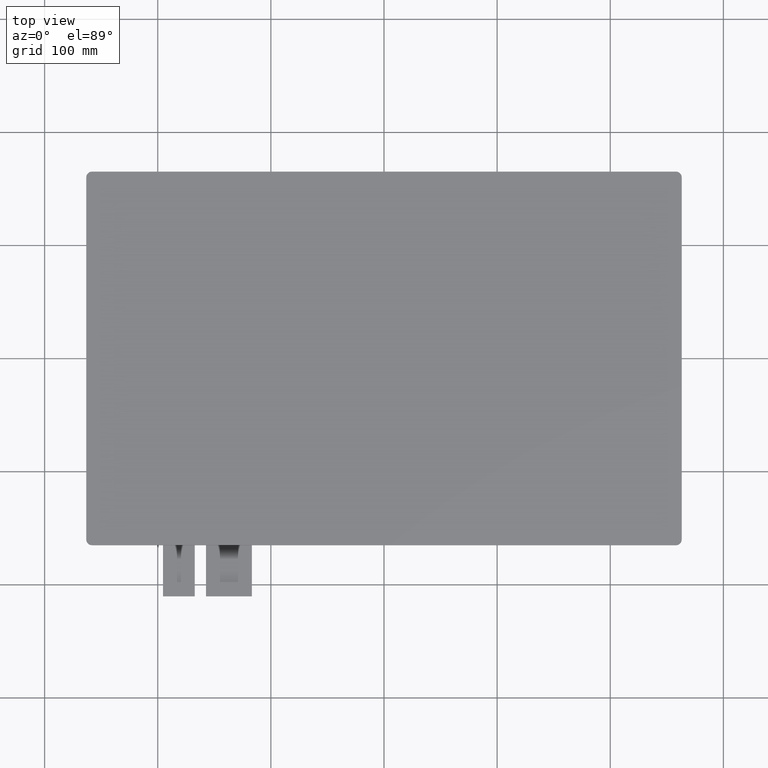
[diagram: clean part render]
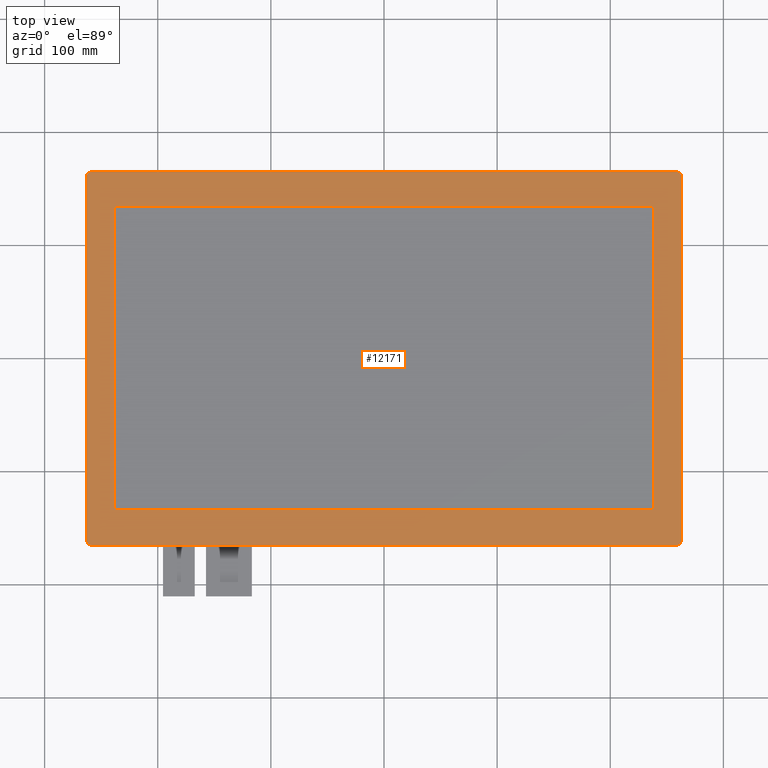
[diagram: same view with one face highlighted and labeled with its STEP entity id]
A machine part, top view. The second image highlights one B-rep face of the part: STEP entity #12171.
In plain terms, the highlighted planar face has unit normal (0, 0, 1).
Its self-contained STEP definition (entity closure, byte-faithful):
#31=FACE_BOUND('',#1776,.T.);
#610=PLANE('',#12787);
#1191=FACE_OUTER_BOUND('',#1775,.T.);
#1775=EDGE_LOOP('',(#11495,#11496,#11497,#11498,#11499,#11500,#11501,#11502));
#1776=EDGE_LOOP('',(#11503,#11504,#11505,#11506));
#3473=LINE('',#19105,#5189);
#3476=LINE('',#19111,#5192);
#3477=LINE('',#19115,#5193);
#3478=LINE('',#19119,#5194);
#3479=LINE('',#19123,#5195);
#3480=LINE('',#19125,#5196);
#3481=LINE('',#19127,#5197);
#3482=LINE('',#19128,#5198);
#5189=VECTOR('',#15637,10.);
#5192=VECTOR('',#15642,10.);
#5193=VECTOR('',#15645,10.);
#5194=VECTOR('',#15648,10.);
#5195=VECTOR('',#15651,10.);
#5196=VECTOR('',#15652,10.);
#5197=VECTOR('',#15653,10.);
#5198=VECTOR('',#15654,10.);
#5239=CIRCLE('',#12784,5.);
#5241=CIRCLE('',#12788,5.);
#5242=CIRCLE('',#12789,5.);
#5243=CIRCLE('',#12790,5.);
#6367=VERTEX_POINT('',#19095);
#6368=VERTEX_POINT('',#19096);
#6371=VERTEX_POINT('',#19104);
#6373=VERTEX_POINT('',#19110);
#6374=VERTEX_POINT('',#19112);
#6375=VERTEX_POINT('',#19114);
#6376=VERTEX_POINT('',#19116);
#6377=VERTEX_POINT('',#19118);
#6378=VERTEX_POINT('',#19121);
#6379=VERTEX_POINT('',#19122);
#6380=VERTEX_POINT('',#19124);
#6381=VERTEX_POINT('',#19126);
#8083=EDGE_CURVE('',#6367,#6368,#5239,.T.);
#8087=EDGE_CURVE('',#6371,#6368,#3473,.T.);
#8090=EDGE_CURVE('',#6367,#6373,#3476,.T.);
#8091=EDGE_CURVE('',#6374,#6373,#5241,.T.);
#8092=EDGE_CURVE('',#6374,#6375,#3477,.T.);
#8093=EDGE_CURVE('',#6376,#6375,#5242,.T.);
#8094=EDGE_CURVE('',#6376,#6377,#3478,.T.);
#8095=EDGE_CURVE('',#6371,#6377,#5243,.T.);
#8096=EDGE_CURVE('',#6378,#6379,#3479,.T.);
#8097=EDGE_CURVE('',#6380,#6378,#3480,.T.);
#8098=EDGE_CURVE('',#6381,#6380,#3481,.T.);
#8099=EDGE_CURVE('',#6379,#6381,#3482,.T.);
#11495=ORIENTED_EDGE('',*,*,#8083,.F.);
#11496=ORIENTED_EDGE('',*,*,#8090,.T.);
#11497=ORIENTED_EDGE('',*,*,#8091,.F.);
#11498=ORIENTED_EDGE('',*,*,#8092,.T.);
#11499=ORIENTED_EDGE('',*,*,#8093,.F.);
#11500=ORIENTED_EDGE('',*,*,#8094,.T.);
#11501=ORIENTED_EDGE('',*,*,#8095,.F.);
#11502=ORIENTED_EDGE('',*,*,#8087,.T.);
#11503=ORIENTED_EDGE('',*,*,#8096,.F.);
#11504=ORIENTED_EDGE('',*,*,#8097,.F.);
#11505=ORIENTED_EDGE('',*,*,#8098,.F.);
#11506=ORIENTED_EDGE('',*,*,#8099,.F.);
#12171=ADVANCED_FACE('',(#1191,#31),#610,.T.);
#12784=AXIS2_PLACEMENT_3D('',#19097,#15629,#15630);
#12787=AXIS2_PLACEMENT_3D('',#19109,#15640,#15641);
#12788=AXIS2_PLACEMENT_3D('',#19113,#15643,#15644);
#12789=AXIS2_PLACEMENT_3D('',#19117,#15646,#15647);
#12790=AXIS2_PLACEMENT_3D('',#19120,#15649,#15650);
#15629=DIRECTION('center_axis',(0.,0.,-1.));
#15630=DIRECTION('ref_axis',(0.707106781186547,0.707106781186547,0.));
#15637=DIRECTION('',(-1.07560208259174E-16,1.,0.));
#15640=DIRECTION('center_axis',(0.,0.,1.));
#15641=DIRECTION('ref_axis',(1.,0.,0.));
#15642=DIRECTION('',(-1.,0.,0.));
#15643=DIRECTION('center_axis',(0.,0.,-1.));
#15644=DIRECTION('ref_axis',(-0.707106781186547,0.707106781186547,0.));
#15645=DIRECTION('',(1.07560208259174E-16,-1.,0.));
#15646=DIRECTION('center_axis',(0.,0.,-1.));
#15647=DIRECTION('ref_axis',(-0.707106781186547,-0.707106781186547,0.));
#15648=DIRECTION('',(1.,6.74907613753895E-17,0.));
#15649=DIRECTION('center_axis',(0.,0.,-1.));
#15650=DIRECTION('ref_axis',(0.707106781186547,-0.707106781186547,0.));
#15651=DIRECTION('',(0.,1.,0.));
#15652=DIRECTION('',(1.,0.,0.));
#15653=DIRECTION('',(0.,-1.,0.));
#15654=DIRECTION('',(-1.,0.,0.));
#19095=CARTESIAN_POINT('',(258.2,165.15,1.8));
#19096=CARTESIAN_POINT('',(263.2,160.15,1.8));
#19097=CARTESIAN_POINT('Origin',(258.2,160.15,1.8));
#19104=CARTESIAN_POINT('',(263.2,-160.15,1.8));
#19105=CARTESIAN_POINT('',(263.2,-165.15,1.8));
#19109=CARTESIAN_POINT('Origin',(-3.5527136788005E-14,3.5527136788005E-14,
1.8));
#19110=CARTESIAN_POINT('',(-258.2,165.15,1.8));
#19111=CARTESIAN_POINT('',(263.2,165.15,1.8));
#19112=CARTESIAN_POINT('',(-263.2,160.15,1.8));
#19113=CARTESIAN_POINT('Origin',(-258.2,160.15,1.8));
#19114=CARTESIAN_POINT('',(-263.2,-160.15,1.8));
#19115=CARTESIAN_POINT('',(-263.2,165.15,1.8));
#19116=CARTESIAN_POINT('',(-258.2,-165.15,1.8));
#19117=CARTESIAN_POINT('Origin',(-258.2,-160.15,1.8));
#19118=CARTESIAN_POINT('',(258.2,-165.15,1.8));
#19119=CARTESIAN_POINT('',(-263.2,-165.15,1.8));
#19120=CARTESIAN_POINT('Origin',(258.2,-160.15,1.8));
#19121=CARTESIAN_POINT('',(238.35,-134.05,1.8));
#19122=CARTESIAN_POINT('',(238.35,134.05,1.8));
#19123=CARTESIAN_POINT('',(238.35,-67.025,1.8));
#19124=CARTESIAN_POINT('',(-238.35,-134.05,1.8));
#19125=CARTESIAN_POINT('',(-119.175,-134.05,1.8));
#19126=CARTESIAN_POINT('',(-238.35,134.05,1.8));
#19127=CARTESIAN_POINT('',(-238.35,67.025,1.8));
#19128=CARTESIAN_POINT('',(119.175,134.05,1.8));